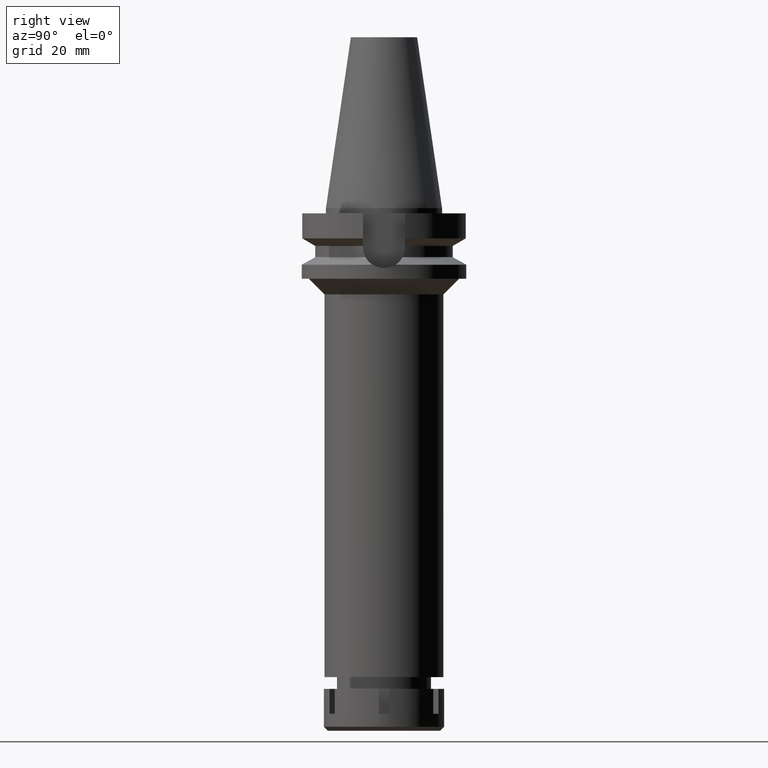
[diagram: clean part render]
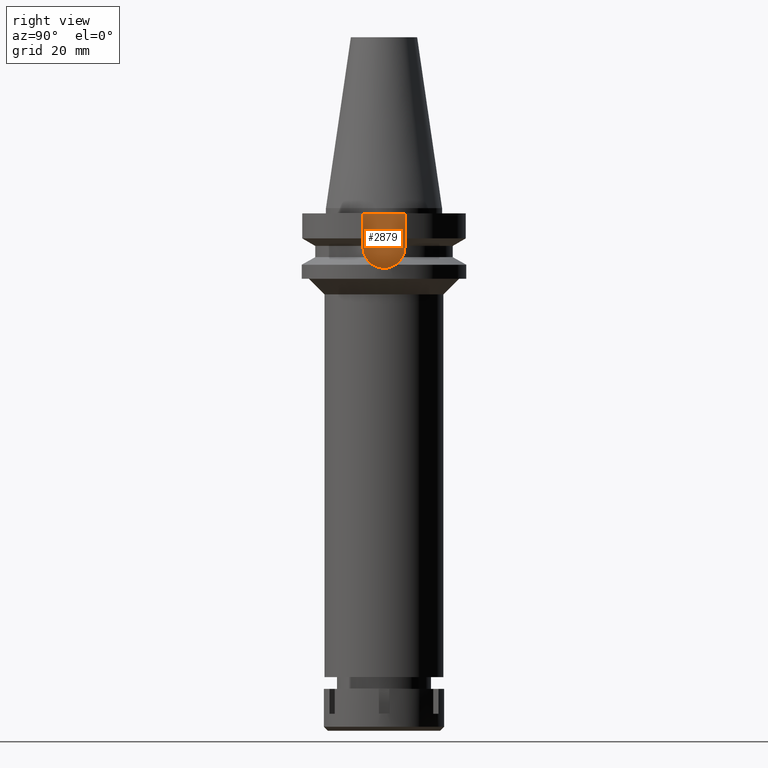
[diagram: same view with one face highlighted and labeled with its STEP entity id]
A machine part, right view. The second image highlights one B-rep face of the part: STEP entity #2879.
In plain terms, the highlighted planar face has unit normal (1, 0, 0).
Its self-contained STEP definition (entity closure, byte-faithful):
#52 = DIRECTION ( 'NONE',  ( -1.000000000000000000, 0.0000000000000000000, 0.0000000000000000000 ) ) ;
#61 = EDGE_CURVE ( 'NONE', #502, #1421, #286, .T. ) ;
#78 = PLANE ( 'NONE',  #113 ) ;
#94 = ORIENTED_EDGE ( 'NONE', *, *, #61, .F. ) ;
#113 = AXIS2_PLACEMENT_3D ( 'NONE', #2340, #971, #3197 ) ;
#158 = AXIS2_PLACEMENT_3D ( 'NONE', #2827, #52, #906 ) ;
#286 = CIRCLE ( 'NONE', #158, 8.050000000000000711 ) ;
#469 = VECTOR ( 'NONE', #1126, 1000.000000000000000 ) ;
#502 = VERTEX_POINT ( 'NONE', #2012 ) ;
#780 = VERTEX_POINT ( 'NONE', #1313 ) ;
#825 = ORIENTED_EDGE ( 'NONE', *, *, #3109, .T. ) ;
#872 = VERTEX_POINT ( 'NONE', #3033 ) ;
#906 = DIRECTION ( 'NONE',  ( 0.0000000000000000000, 1.000000000000000000, 0.0000000000000000000 ) ) ;
#971 = DIRECTION ( 'NONE',  ( 1.000000000000000000, 0.0000000000000000000, 0.0000000000000000000 ) ) ;
#1069 = ORIENTED_EDGE ( 'NONE', *, *, #1407, .F. ) ;
#1126 = DIRECTION ( 'NONE',  ( 0.0000000000000000000, 0.0000000000000000000, 1.000000000000000000 ) ) ;
#1159 = LINE ( 'NONE', #2525, #469 ) ;
#1313 = CARTESIAN_POINT ( 'NONE',  ( 22.50000000000000000, -8.050000000000000711, -2.000000000000000000 ) ) ;
#1389 = CARTESIAN_POINT ( 'NONE',  ( 22.50000000000000000, -8.050000000000000711, -14.94999999999999929 ) ) ;
#1407 = EDGE_CURVE ( 'NONE', #1421, #780, #1159, .T. ) ;
#1421 = VERTEX_POINT ( 'NONE', #1389 ) ;
#1536 = VECTOR ( 'NONE', #2502, 1000.000000000000000 ) ;
#1853 = VECTOR ( 'NONE', #2423, 1000.000000000000000 ) ;
#1896 = LINE ( 'NONE', #1939, #1853 ) ;
#1939 = CARTESIAN_POINT ( 'NONE',  ( 22.50000000000000000, 8.050000000000000711, -2.000000000000000000 ) ) ;
#2012 = CARTESIAN_POINT ( 'NONE',  ( 22.50000000000000000, 8.050000000000000711, -14.94999999999999929 ) ) ;
#2340 = CARTESIAN_POINT ( 'NONE',  ( 22.50000000000000000, 0.0000000000000000000, 0.0000000000000000000 ) ) ;
#2423 = DIRECTION ( 'NONE',  ( 0.0000000000000000000, -1.000000000000000000, 0.0000000000000000000 ) ) ;
#2450 = CARTESIAN_POINT ( 'NONE',  ( 22.50000000000000000, 8.050000000000000711, -2.000000000000000000 ) ) ;
#2502 = DIRECTION ( 'NONE',  ( 0.0000000000000000000, 0.0000000000000000000, -1.000000000000000000 ) ) ;
#2525 = CARTESIAN_POINT ( 'NONE',  ( 22.50000000000000000, -8.050000000000000711, -14.94999999999999929 ) ) ;
#2590 = FACE_OUTER_BOUND ( 'NONE', #2716, .T. ) ;
#2638 = EDGE_CURVE ( 'NONE', #872, #502, #3060, .T. ) ;
#2708 = ORIENTED_EDGE ( 'NONE', *, *, #2638, .F. ) ;
#2716 = EDGE_LOOP ( 'NONE', ( #1069, #94, #2708, #825 ) ) ;
#2827 = CARTESIAN_POINT ( 'NONE',  ( 22.50000000000000000, 0.0000000000000000000, -14.94999999999999929 ) ) ;
#2879 = ADVANCED_FACE ( 'NONE', ( #2590 ), #78, .T. ) ;
#3033 = CARTESIAN_POINT ( 'NONE',  ( 22.50000000000000000, 8.050000000000000711, -2.000000000000000000 ) ) ;
#3060 = LINE ( 'NONE', #2450, #1536 ) ;
#3109 = EDGE_CURVE ( 'NONE', #872, #780, #1896, .T. ) ;
#3197 = DIRECTION ( 'NONE',  ( 0.0000000000000000000, 1.000000000000000000, 0.0000000000000000000 ) ) ;